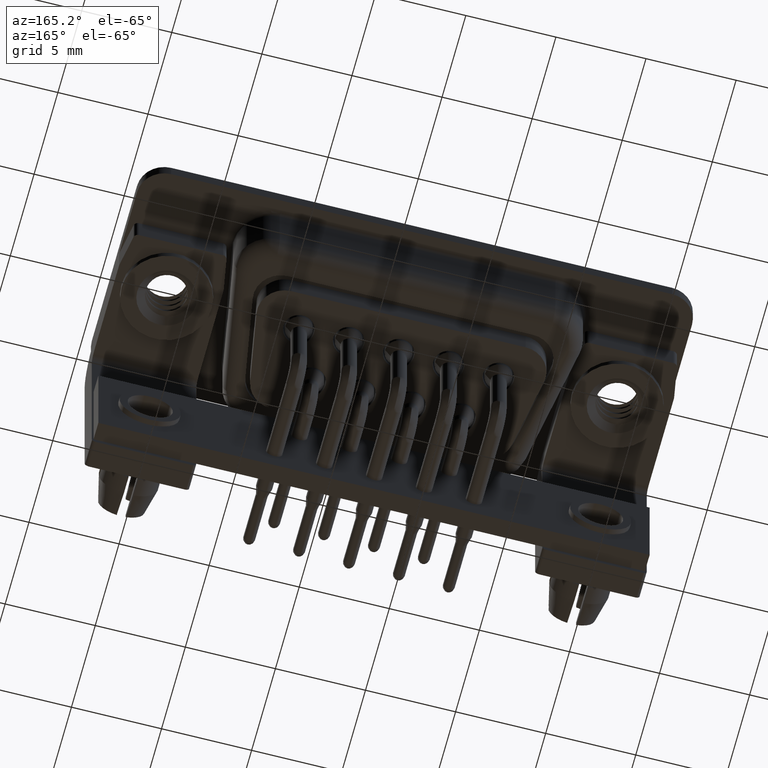
[diagram: clean part render]
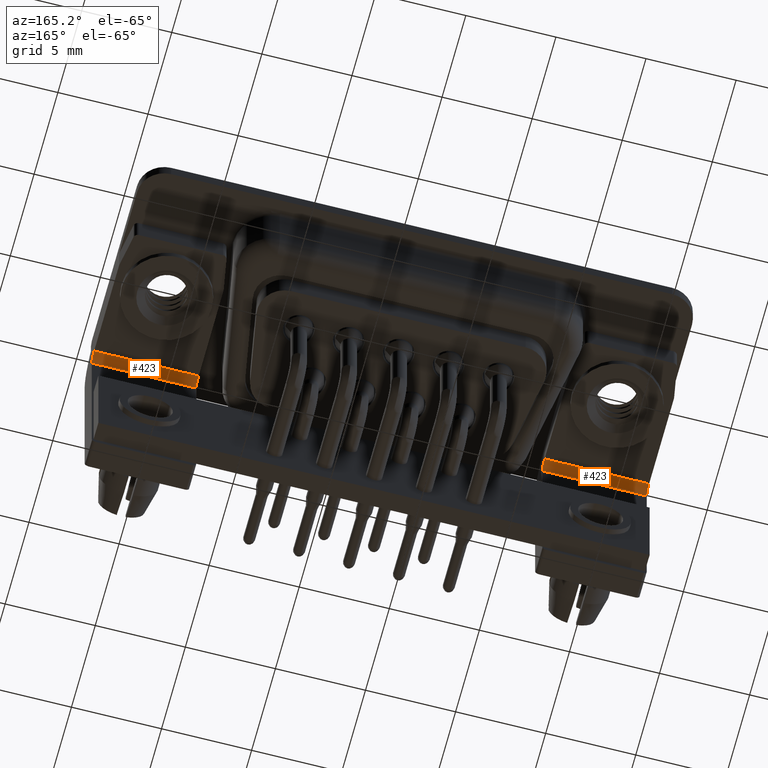
[diagram: same view with one multi-face feature highlighted, each face labeled with its STEP entity id]
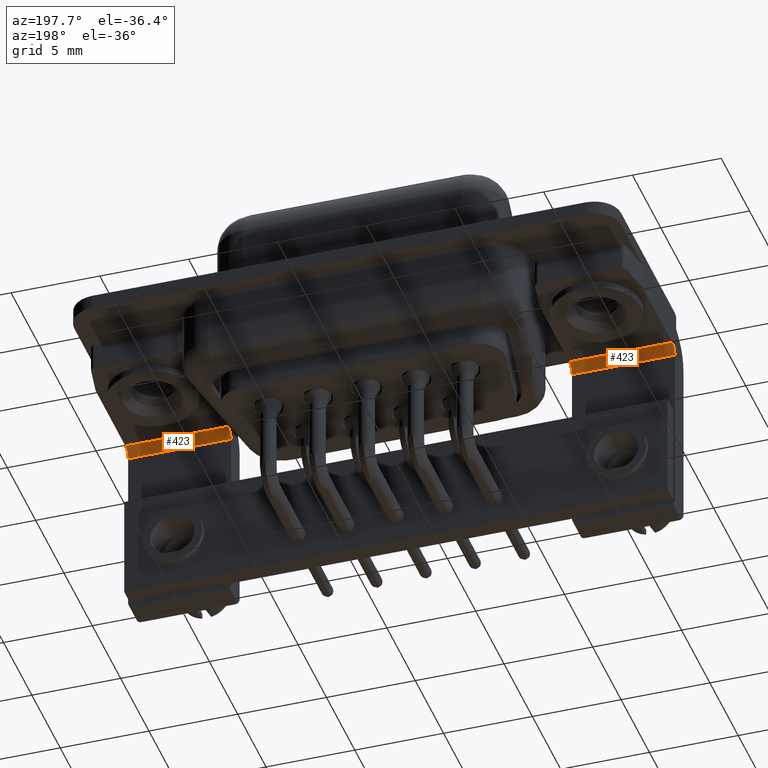
[diagram: same view with one multi-face feature highlighted, each face labeled with its STEP entity id]
A machine part, auxiliary view. The highlighted faces form ONE feature: a constant-radius fillet chain: 2 tangent blend faces with common blend radius 0.5 mm. The faces share edges in the B-rep.
A second angle (auxiliary view) of the same feature is appended — it is thin or edge-on in the first view.
Their STEP definitions:
[1] entity #423 (Cylinder):
#359 = EDGE_CURVE ( 'NONE', #17620, #1261, #10589, .T. ) ;
#423 = ADVANCED_FACE ( 'NONE', ( #10125 ), #17030, .F. ) ;
#461 = CIRCLE ( 'NONE', #3339, 0.5000000000000000000 ) ;
#1210 = VERTEX_POINT ( 'NONE', #9828 ) ;
#1261 = VERTEX_POINT ( 'NONE', #1810 ) ;
#1456 = EDGE_LOOP ( 'NONE', ( #4273, #18967, #10889, #11695 ) ) ;
#1810 = CARTESIAN_POINT ( 'NONE',  ( -2.899999999999999900, -4.749999999999999100, -2.400000000000001200 ) ) ;
#3225 = DIRECTION ( 'NONE',  ( -1.000000000000000000, -0.0000000000000000000, -0.0000000000000000000 ) ) ;
#3339 = AXIS2_PLACEMENT_3D ( 'NONE', #3485, #13762, #4973 ) ;
#3485 = CARTESIAN_POINT ( 'NONE',  ( -2.899999999999999900, -4.249999999999999100, -2.400000000000001200 ) ) ;
#4036 = VERTEX_POINT ( 'NONE', #17428 ) ;
#4273 = ORIENTED_EDGE ( 'NONE', *, *, #13903, .T. ) ;
#4973 = DIRECTION ( 'NONE',  ( 0.0000000000000000000, 0.0000000000000000000, 1.000000000000000000 ) ) ;
#5118 = LINE ( 'NONE', #12081, #12940 ) ;
#5899 = CARTESIAN_POINT ( 'NONE',  ( 2.899999999999999900, -4.249999999999999100, -2.400000000000001200 ) ) ;
#6650 = EDGE_CURVE ( 'NONE', #17620, #4036, #16175, .T. ) ;
#6651 = VECTOR ( 'NONE', #15518, 1000.000000000000000 ) ;
#7406 = DIRECTION ( 'NONE',  ( 0.0000000000000000000, 0.0000000000000000000, 1.000000000000000000 ) ) ;
#7440 = CARTESIAN_POINT ( 'NONE',  ( 2.899999999999999900, -4.749999999999999100, -2.400000000000001200 ) ) ;
#8404 = DIRECTION ( 'NONE',  ( 0.0000000000000000000, 0.0000000000000000000, 1.000000000000000000 ) ) ;
#8451 = DIRECTION ( 'NONE',  ( -1.000000000000000000, -0.0000000000000000000, -0.0000000000000000000 ) ) ;
#9222 = AXIS2_PLACEMENT_3D ( 'NONE', #5899, #16224, #7406 ) ;
#9828 = CARTESIAN_POINT ( 'NONE',  ( -2.899999999999999900, -4.249999999999999100, -1.900000000000001000 ) ) ;
#10125 = FACE_OUTER_BOUND ( 'NONE', #1456, .T. ) ;
#10589 = LINE ( 'NONE', #7440, #6651 ) ;
#10889 = ORIENTED_EDGE ( 'NONE', *, *, #6650, .F. ) ;
#11695 = ORIENTED_EDGE ( 'NONE', *, *, #359, .T. ) ;
#12081 = CARTESIAN_POINT ( 'NONE',  ( 2.899999999999999900, -4.249999999999999100, -1.900000000000001000 ) ) ;
#12940 = VECTOR ( 'NONE', #3225, 1000.000000000000000 ) ;
#13762 = DIRECTION ( 'NONE',  ( -1.000000000000000000, -0.0000000000000000000, 0.0000000000000000000 ) ) ;
#13903 = EDGE_CURVE ( 'NONE', #1261, #1210, #461, .T. ) ;
#14784 = CARTESIAN_POINT ( 'NONE',  ( 2.899999999999999900, -4.749999999999999100, -2.400000000000001200 ) ) ;
#15518 = DIRECTION ( 'NONE',  ( -1.000000000000000000, -0.0000000000000000000, -0.0000000000000000000 ) ) ;
#16175 = CIRCLE ( 'NONE', #9222, 0.5000000000000000000 ) ;
#16224 = DIRECTION ( 'NONE',  ( -1.000000000000000000, -0.0000000000000000000, 0.0000000000000000000 ) ) ;
#17030 = CYLINDRICAL_SURFACE ( 'NONE', #18028, 0.5000000000000000000 ) ;
#17428 = CARTESIAN_POINT ( 'NONE',  ( 2.899999999999999900, -4.249999999999999100, -1.900000000000001000 ) ) ;
#17620 = VERTEX_POINT ( 'NONE', #14784 ) ;
#18028 = AXIS2_PLACEMENT_3D ( 'NONE', #19025, #8451, #8404 ) ;
#18911 = EDGE_CURVE ( 'NONE', #4036, #1210, #5118, .T. ) ;
#18967 = ORIENTED_EDGE ( 'NONE', *, *, #18911, .F. ) ;
#19025 = CARTESIAN_POINT ( 'NONE',  ( 2.899999999999999900, -4.249999999999999100, -2.400000000000001200 ) ) ;
[2] entity #423 (Cylinder):
#359 = EDGE_CURVE ( 'NONE', #17620, #1261, #10589, .T. ) ;
#423 = ADVANCED_FACE ( 'NONE', ( #10125 ), #17030, .F. ) ;
#461 = CIRCLE ( 'NONE', #3339, 0.5000000000000000000 ) ;
#1210 = VERTEX_POINT ( 'NONE', #9828 ) ;
#1261 = VERTEX_POINT ( 'NONE', #1810 ) ;
#1456 = EDGE_LOOP ( 'NONE', ( #4273, #18967, #10889, #11695 ) ) ;
#1810 = CARTESIAN_POINT ( 'NONE',  ( -2.899999999999999900, -4.749999999999999100, -2.400000000000001200 ) ) ;
#3225 = DIRECTION ( 'NONE',  ( -1.000000000000000000, -0.0000000000000000000, -0.0000000000000000000 ) ) ;
#3339 = AXIS2_PLACEMENT_3D ( 'NONE', #3485, #13762, #4973 ) ;
#3485 = CARTESIAN_POINT ( 'NONE',  ( -2.899999999999999900, -4.249999999999999100, -2.400000000000001200 ) ) ;
#4036 = VERTEX_POINT ( 'NONE', #17428 ) ;
#4273 = ORIENTED_EDGE ( 'NONE', *, *, #13903, .T. ) ;
#4973 = DIRECTION ( 'NONE',  ( 0.0000000000000000000, 0.0000000000000000000, 1.000000000000000000 ) ) ;
#5118 = LINE ( 'NONE', #12081, #12940 ) ;
#5899 = CARTESIAN_POINT ( 'NONE',  ( 2.899999999999999900, -4.249999999999999100, -2.400000000000001200 ) ) ;
#6650 = EDGE_CURVE ( 'NONE', #17620, #4036, #16175, .T. ) ;
#6651 = VECTOR ( 'NONE', #15518, 1000.000000000000000 ) ;
#7406 = DIRECTION ( 'NONE',  ( 0.0000000000000000000, 0.0000000000000000000, 1.000000000000000000 ) ) ;
#7440 = CARTESIAN_POINT ( 'NONE',  ( 2.899999999999999900, -4.749999999999999100, -2.400000000000001200 ) ) ;
#8404 = DIRECTION ( 'NONE',  ( 0.0000000000000000000, 0.0000000000000000000, 1.000000000000000000 ) ) ;
#8451 = DIRECTION ( 'NONE',  ( -1.000000000000000000, -0.0000000000000000000, -0.0000000000000000000 ) ) ;
#9222 = AXIS2_PLACEMENT_3D ( 'NONE', #5899, #16224, #7406 ) ;
#9828 = CARTESIAN_POINT ( 'NONE',  ( -2.899999999999999900, -4.249999999999999100, -1.900000000000001000 ) ) ;
#10125 = FACE_OUTER_BOUND ( 'NONE', #1456, .T. ) ;
#10589 = LINE ( 'NONE', #7440, #6651 ) ;
#10889 = ORIENTED_EDGE ( 'NONE', *, *, #6650, .F. ) ;
#11695 = ORIENTED_EDGE ( 'NONE', *, *, #359, .T. ) ;
#12081 = CARTESIAN_POINT ( 'NONE',  ( 2.899999999999999900, -4.249999999999999100, -1.900000000000001000 ) ) ;
#12940 = VECTOR ( 'NONE', #3225, 1000.000000000000000 ) ;
#13762 = DIRECTION ( 'NONE',  ( -1.000000000000000000, -0.0000000000000000000, 0.0000000000000000000 ) ) ;
#13903 = EDGE_CURVE ( 'NONE', #1261, #1210, #461, .T. ) ;
#14784 = CARTESIAN_POINT ( 'NONE',  ( 2.899999999999999900, -4.749999999999999100, -2.400000000000001200 ) ) ;
#15518 = DIRECTION ( 'NONE',  ( -1.000000000000000000, -0.0000000000000000000, -0.0000000000000000000 ) ) ;
#16175 = CIRCLE ( 'NONE', #9222, 0.5000000000000000000 ) ;
#16224 = DIRECTION ( 'NONE',  ( -1.000000000000000000, -0.0000000000000000000, 0.0000000000000000000 ) ) ;
#17030 = CYLINDRICAL_SURFACE ( 'NONE', #18028, 0.5000000000000000000 ) ;
#17428 = CARTESIAN_POINT ( 'NONE',  ( 2.899999999999999900, -4.249999999999999100, -1.900000000000001000 ) ) ;
#17620 = VERTEX_POINT ( 'NONE', #14784 ) ;
#18028 = AXIS2_PLACEMENT_3D ( 'NONE', #19025, #8451, #8404 ) ;
#18911 = EDGE_CURVE ( 'NONE', #4036, #1210, #5118, .T. ) ;
#18967 = ORIENTED_EDGE ( 'NONE', *, *, #18911, .F. ) ;
#19025 = CARTESIAN_POINT ( 'NONE',  ( 2.899999999999999900, -4.249999999999999100, -2.400000000000001200 ) ) ;